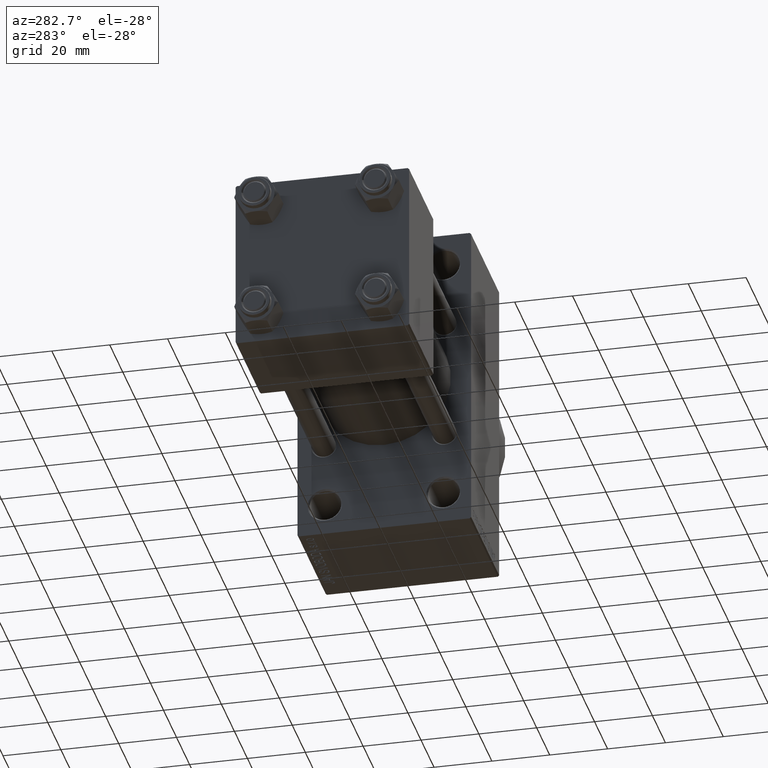
[diagram: clean part render]
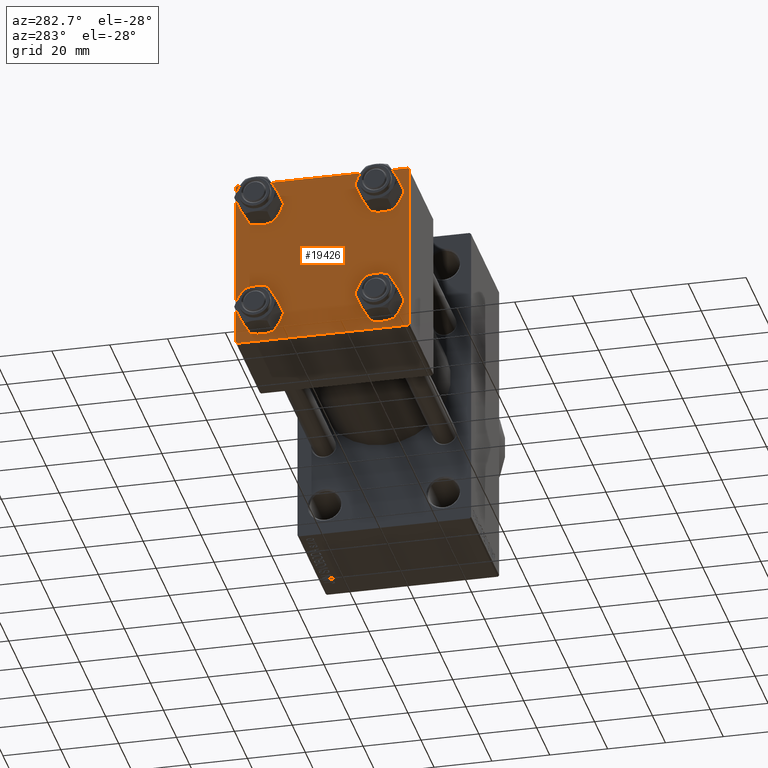
[diagram: same view with one face highlighted and labeled with its STEP entity id]
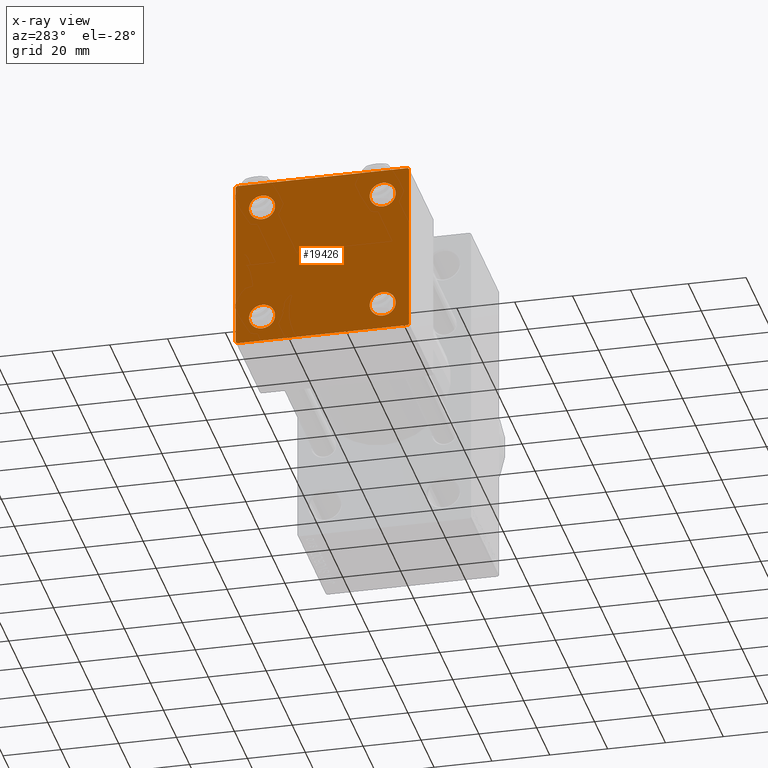
[diagram: x-ray of the same camera — body ghosted, the highlighted face saturated]
A machine part, auxiliary view. The second image highlights one B-rep face of the part: STEP entity #19426.
The next image is the same camera in x-ray: the body ghosted, the highlighted face saturated — about 0% of this face is hidden behind the body in this view.
In plain terms, the highlighted planar face has unit normal (-1, 0, 0).
Its self-contained STEP definition (entity closure, byte-faithful):
#962 = DIRECTION ( 'NONE',  ( 0.000000000000000000, 0.7071067811865474617, -0.7071067811865474617 ) ) ;
#1650 = DIRECTION ( 'NONE',  ( 0.000000000000000000, 0.000000000000000000, -1.000000000000000000 ) ) ;
#1942 = ORIENTED_EDGE ( 'NONE', *, *, #34744, .T. ) ;
#1988 = DIRECTION ( 'NONE',  ( 1.000000000000000000, -0.000000000000000000, 0.000000000000000000 ) ) ;
#2222 = CARTESIAN_POINT ( 'NONE',  ( 0.000000000000000000, 0.000000000000000000, 0.000000000000000000 ) ) ;
#2422 = DIRECTION ( 'NONE',  ( 0.000000000000000000, 0.000000000000000000, 1.000000000000000000 ) ) ;
#2510 = EDGE_CURVE ( 'NONE', #34129, #33827, #39737, .T. ) ;
#3054 = EDGE_CURVE ( 'NONE', #9272, #4855, #40865, .T. ) ;
#3166 = FACE_OUTER_BOUND ( 'NONE', #15558, .T. ) ;
#3541 = DIRECTION ( 'NONE',  ( -0.000000000000000000, -0.7071067811865574537, -0.7071067811865376918 ) ) ;
#3559 = CARTESIAN_POINT ( 'NONE',  ( 0.000000000000000000, -29.49999999999998579, 29.99999999999999289 ) ) ;
#4176 = ORIENTED_EDGE ( 'NONE', *, *, #19343, .T. ) ;
#4632 = VECTOR ( 'NONE', #11978, 1000.000000000000114 ) ;
#4855 = VERTEX_POINT ( 'NONE', #18483 ) ;
#5230 = CARTESIAN_POINT ( 'NONE',  ( 0.000000000000000000, 29.99999999999999289, -29.50000000000000000 ) ) ;
#5875 = ORIENTED_EDGE ( 'NONE', *, *, #20885, .T. ) ;
#6030 = VERTEX_POINT ( 'NONE', #43015 ) ;
#6413 = VECTOR ( 'NONE', #33736, 1000.000000000000000 ) ;
#6750 = VERTEX_POINT ( 'NONE', #6920 ) ;
#6920 = CARTESIAN_POINT ( 'NONE',  ( 0.000000000000000000, -20.84999999999999076, -25.35000000000002274 ) ) ;
#7287 = DIRECTION ( 'NONE',  ( 1.000000000000000000, -0.000000000000000000, 0.000000000000000000 ) ) ;
#7428 = CARTESIAN_POINT ( 'NONE',  ( 0.000000000000000000, -30.00000000000000000, 29.99999999999999289 ) ) ;
#7519 = DIRECTION ( 'NONE',  ( 0.000000000000000000, 0.000000000000000000, 1.000000000000000000 ) ) ;
#8514 = FACE_BOUND ( 'NONE', #20068, .T. ) ;
#9272 = VERTEX_POINT ( 'NONE', #28049 ) ;
#9801 = EDGE_CURVE ( 'NONE', #12991, #33827, #19003, .T. ) ;
#10515 = EDGE_CURVE ( 'NONE', #45861, #42917, #41261, .T. ) ;
#11374 = VECTOR ( 'NONE', #28306, 1000.000000000000000 ) ;
#11383 = CARTESIAN_POINT ( 'NONE',  ( 0.000000000000000000, -30.00000000000000000, 29.49999999999999289 ) ) ;
#11923 = EDGE_LOOP ( 'NONE', ( #39537, #40992 ) ) ;
#11975 = VECTOR ( 'NONE', #18150, 1000.000000000000114 ) ;
#11978 = DIRECTION ( 'NONE',  ( 0.000000000000000000, -0.7071067811865474617, 0.7071067811865474617 ) ) ;
#12143 = CARTESIAN_POINT ( 'NONE',  ( 0.000000000000000000, -20.84999999999999076, 20.85000000000000497 ) ) ;
#12378 = FACE_BOUND ( 'NONE', #11923, .T. ) ;
#12939 = EDGE_CURVE ( 'NONE', #34611, #40079, #43522, .T. ) ;
#12991 = VERTEX_POINT ( 'NONE', #11383 ) ;
#13301 = DIRECTION ( 'NONE',  ( 0.000000000000000000, 0.000000000000000000, 1.000000000000000000 ) ) ;
#13768 = CARTESIAN_POINT ( 'NONE',  ( 0.000000000000000000, -20.84999999999999076, 20.85000000000000497 ) ) ;
#14284 = DIRECTION ( 'NONE',  ( -1.000000000000000000, 0.000000000000000000, -0.000000000000000000 ) ) ;
#14643 = DIRECTION ( 'NONE',  ( 0.000000000000000000, 0.000000000000000000, 1.000000000000000000 ) ) ;
#15284 = ORIENTED_EDGE ( 'NONE', *, *, #45077, .T. ) ;
#15305 = CIRCLE ( 'NONE', #29197, 4.500000000000017764 ) ;
#15486 = LINE ( 'NONE', #44453, #41775 ) ;
#15558 = EDGE_LOOP ( 'NONE', ( #1942, #5875, #38282, #17101, #43149, #15284, #35704, #21425 ) ) ;
#15811 = AXIS2_PLACEMENT_3D ( 'NONE', #32998, #47692, #14643 ) ;
#16652 = VERTEX_POINT ( 'NONE', #20162 ) ;
#17095 = CARTESIAN_POINT ( 'NONE',  ( 0.000000000000000000, 29.99999999999999289, 30.00000000000000000 ) ) ;
#17101 = ORIENTED_EDGE ( 'NONE', *, *, #2510, .T. ) ;
#17893 = PLANE ( 'NONE',  #46059 ) ;
#18150 = DIRECTION ( 'NONE',  ( -0.000000000000000000, 0.7071067811865474617, 0.7071067811865474617 ) ) ;
#18483 = CARTESIAN_POINT ( 'NONE',  ( 0.000000000000000000, 20.84999999999999787, -16.34999999999998366 ) ) ;
#18784 = VECTOR ( 'NONE', #962, 1000.000000000000114 ) ;
#19003 = LINE ( 'NONE', #7428, #6413 ) ;
#19154 = EDGE_CURVE ( 'NONE', #45861, #34873, #40083, .T. ) ;
#19343 = EDGE_CURVE ( 'NONE', #28032, #28061, #20617, .T. ) ;
#19384 = EDGE_CURVE ( 'NONE', #6750, #6030, #36813, .T. ) ;
#19426 = ADVANCED_FACE ( 'NONE', ( #41572, #8514, #45670, #12378, #3166 ), #17893, .T. ) ;
#20068 = EDGE_LOOP ( 'NONE', ( #41237, #21252 ) ) ;
#20162 = CARTESIAN_POINT ( 'NONE',  ( 0.000000000000000000, 29.49999999999997868, -30.00000000000000000 ) ) ;
#20191 = ORIENTED_EDGE ( 'NONE', *, *, #3054, .T. ) ;
#20216 = AXIS2_PLACEMENT_3D ( 'NONE', #13768, #21016, #13301 ) ;
#20402 = EDGE_CURVE ( 'NONE', #6030, #6750, #36079, .T. ) ;
#20617 = CIRCLE ( 'NONE', #33741, 4.500000000000017764 ) ;
#20648 = CARTESIAN_POINT ( 'NONE',  ( 0.000000000000000000, 20.84999999999999787, 20.85000000000000142 ) ) ;
#20774 = DIRECTION ( 'NONE',  ( 1.000000000000000000, -0.000000000000000000, 0.000000000000000000 ) ) ;
#20885 = EDGE_CURVE ( 'NONE', #25245, #16652, #37089, .T. ) ;
#21016 = DIRECTION ( 'NONE',  ( 1.000000000000000000, -0.000000000000000000, 0.000000000000000000 ) ) ;
#21055 = DIRECTION ( 'NONE',  ( 1.000000000000000000, -0.000000000000000000, 0.000000000000000000 ) ) ;
#21252 = ORIENTED_EDGE ( 'NONE', *, *, #19384, .T. ) ;
#21425 = ORIENTED_EDGE ( 'NONE', *, *, #10515, .T. ) ;
#21463 = EDGE_CURVE ( 'NONE', #40079, #34611, #15305, .T. ) ;
#22604 = CARTESIAN_POINT ( 'NONE',  ( 0.000000000000000000, -29.75000000000001066, -29.75000000000001066 ) ) ;
#23321 = VECTOR ( 'NONE', #1650, 1000.000000000000000 ) ;
#23442 = DIRECTION ( 'NONE',  ( 0.000000000000000000, -1.000000000000000000, -1.156482317317871725E-16 ) ) ;
#23483 = DIRECTION ( 'NONE',  ( 1.000000000000000000, -0.000000000000000000, 0.000000000000000000 ) ) ;
#24580 = CARTESIAN_POINT ( 'NONE',  ( 0.000000000000000000, -29.50000000000000000, -30.00000000000000711 ) ) ;
#24686 = CARTESIAN_POINT ( 'NONE',  ( 0.000000000000000000, -20.84999999999999076, -20.85000000000000497 ) ) ;
#25245 = VERTEX_POINT ( 'NONE', #5230 ) ;
#25595 = CARTESIAN_POINT ( 'NONE',  ( 0.000000000000000000, 20.84999999999999787, 25.35000000000001918 ) ) ;
#26356 = CARTESIAN_POINT ( 'NONE',  ( -0.000000000000000000, -29.74999999999999645, 29.74999999999999645 ) ) ;
#26779 = LINE ( 'NONE', #17095, #23321 ) ;
#26873 = DIRECTION ( 'NONE',  ( 0.000000000000000000, 0.000000000000000000, 1.000000000000000000 ) ) ;
#27029 = CARTESIAN_POINT ( 'NONE',  ( 0.000000000000000000, 29.74999999999999645, 29.74999999999999645 ) ) ;
#27574 = AXIS2_PLACEMENT_3D ( 'NONE', #31217, #1988, #26873 ) ;
#28032 = VERTEX_POINT ( 'NONE', #32641 ) ;
#28049 = CARTESIAN_POINT ( 'NONE',  ( 0.000000000000000000, 20.84999999999999787, -25.35000000000001918 ) ) ;
#28061 = VERTEX_POINT ( 'NONE', #44917 ) ;
#28306 = DIRECTION ( 'NONE',  ( 0.000000000000000000, -1.000000000000000000, -1.156482317317871725E-16 ) ) ;
#29197 = AXIS2_PLACEMENT_3D ( 'NONE', #39111, #20774, #2422 ) ;
#30502 = DIRECTION ( 'NONE',  ( 0.000000000000000000, 0.000000000000000000, 1.000000000000000000 ) ) ;
#31071 = DIRECTION ( 'NONE',  ( 1.000000000000000000, -0.000000000000000000, 0.000000000000000000 ) ) ;
#31169 = EDGE_LOOP ( 'NONE', ( #41183, #20191 ) ) ;
#31217 = CARTESIAN_POINT ( 'NONE',  ( 0.000000000000000000, -20.84999999999999076, -20.85000000000000497 ) ) ;
#31917 = CARTESIAN_POINT ( 'NONE',  ( 0.000000000000000000, 29.99999999999999289, 30.00000000000000000 ) ) ;
#32629 = DIRECTION ( 'NONE',  ( -0.000000000000000000, 0.000000000000000000, 1.000000000000000000 ) ) ;
#32641 = CARTESIAN_POINT ( 'NONE',  ( 0.000000000000000000, -20.84999999999999076, 16.34999999999998721 ) ) ;
#32998 = CARTESIAN_POINT ( 'NONE',  ( 0.000000000000000000, 20.84999999999999787, -20.85000000000000142 ) ) ;
#33597 = LINE ( 'NONE', #26356, #11975 ) ;
#33682 = EDGE_CURVE ( 'NONE', #16652, #34129, #15486, .T. ) ;
#33736 = DIRECTION ( 'NONE',  ( 0.000000000000000000, 0.000000000000000000, -1.000000000000000000 ) ) ;
#33741 = AXIS2_PLACEMENT_3D ( 'NONE', #12143, #23483, #30502 ) ;
#33827 = VERTEX_POINT ( 'NONE', #40519 ) ;
#34129 = VERTEX_POINT ( 'NONE', #24580 ) ;
#34515 = EDGE_CURVE ( 'NONE', #28061, #28032, #45635, .T. ) ;
#34521 = CARTESIAN_POINT ( 'NONE',  ( 0.000000000000000000, 20.84999999999999787, 16.34999999999998366 ) ) ;
#34611 = VERTEX_POINT ( 'NONE', #25595 ) ;
#34741 = EDGE_LOOP ( 'NONE', ( #44610, #4176 ) ) ;
#34744 = EDGE_CURVE ( 'NONE', #42917, #25245, #26779, .T. ) ;
#34873 = VERTEX_POINT ( 'NONE', #3559 ) ;
#35524 = AXIS2_PLACEMENT_3D ( 'NONE', #39021, #31071, #42154 ) ;
#35704 = ORIENTED_EDGE ( 'NONE', *, *, #19154, .F. ) ;
#36079 = CIRCLE ( 'NONE', #46089, 4.500000000000017764 ) ;
#36499 = DIRECTION ( 'NONE',  ( 0.000000000000000000, 0.000000000000000000, 1.000000000000000000 ) ) ;
#36813 = CIRCLE ( 'NONE', #27574, 4.500000000000017764 ) ;
#37089 = LINE ( 'NONE', #40926, #45294 ) ;
#38282 = ORIENTED_EDGE ( 'NONE', *, *, #33682, .T. ) ;
#39021 = CARTESIAN_POINT ( 'NONE',  ( 0.000000000000000000, 20.84999999999999787, -20.85000000000000142 ) ) ;
#39111 = CARTESIAN_POINT ( 'NONE',  ( 0.000000000000000000, 20.84999999999999787, 20.85000000000000142 ) ) ;
#39537 = ORIENTED_EDGE ( 'NONE', *, *, #12939, .T. ) ;
#39661 = CIRCLE ( 'NONE', #15811, 4.500000000000017764 ) ;
#39737 = LINE ( 'NONE', #22604, #4632 ) ;
#40079 = VERTEX_POINT ( 'NONE', #34521 ) ;
#40083 = LINE ( 'NONE', #31917, #11374 ) ;
#40149 = CARTESIAN_POINT ( 'NONE',  ( 0.000000000000000000, 29.99999999999999289, 29.50000000000000000 ) ) ;
#40519 = CARTESIAN_POINT ( 'NONE',  ( 0.000000000000000000, -30.00000000000000000, -29.50000000000001776 ) ) ;
#40865 = CIRCLE ( 'NONE', #35524, 4.500000000000017764 ) ;
#40926 = CARTESIAN_POINT ( 'NONE',  ( 0.000000000000000000, 29.74999999999957723, -29.75000000000040501 ) ) ;
#40992 = ORIENTED_EDGE ( 'NONE', *, *, #21463, .T. ) ;
#41183 = ORIENTED_EDGE ( 'NONE', *, *, #43505, .T. ) ;
#41237 = ORIENTED_EDGE ( 'NONE', *, *, #20402, .T. ) ;
#41261 = LINE ( 'NONE', #27029, #18784 ) ;
#41572 = FACE_BOUND ( 'NONE', #34741, .T. ) ;
#41775 = VECTOR ( 'NONE', #23442, 1000.000000000000000 ) ;
#42073 = CARTESIAN_POINT ( 'NONE',  ( 0.000000000000000000, 29.49999999999999289, 30.00000000000000000 ) ) ;
#42154 = DIRECTION ( 'NONE',  ( 0.000000000000000000, 0.000000000000000000, 1.000000000000000000 ) ) ;
#42917 = VERTEX_POINT ( 'NONE', #40149 ) ;
#43015 = CARTESIAN_POINT ( 'NONE',  ( 0.000000000000000000, -20.84999999999999076, -16.34999999999998721 ) ) ;
#43149 = ORIENTED_EDGE ( 'NONE', *, *, #9801, .F. ) ;
#43505 = EDGE_CURVE ( 'NONE', #4855, #9272, #39661, .T. ) ;
#43522 = CIRCLE ( 'NONE', #45824, 4.500000000000017764 ) ;
#44453 = CARTESIAN_POINT ( 'NONE',  ( 0.000000000000000000, 29.99999999999999289, -30.00000000000000000 ) ) ;
#44610 = ORIENTED_EDGE ( 'NONE', *, *, #34515, .T. ) ;
#44917 = CARTESIAN_POINT ( 'NONE',  ( 0.000000000000000000, -20.84999999999999076, 25.35000000000002274 ) ) ;
#45077 = EDGE_CURVE ( 'NONE', #12991, #34873, #33597, .T. ) ;
#45294 = VECTOR ( 'NONE', #3541, 999.9999999999998863 ) ;
#45635 = CIRCLE ( 'NONE', #20216, 4.500000000000017764 ) ;
#45670 = FACE_BOUND ( 'NONE', #31169, .T. ) ;
#45824 = AXIS2_PLACEMENT_3D ( 'NONE', #20648, #7287, #7519 ) ;
#45861 = VERTEX_POINT ( 'NONE', #42073 ) ;
#46059 = AXIS2_PLACEMENT_3D ( 'NONE', #2222, #14284, #32629 ) ;
#46089 = AXIS2_PLACEMENT_3D ( 'NONE', #24686, #21055, #36499 ) ;
#47692 = DIRECTION ( 'NONE',  ( 1.000000000000000000, -0.000000000000000000, 0.000000000000000000 ) ) ;